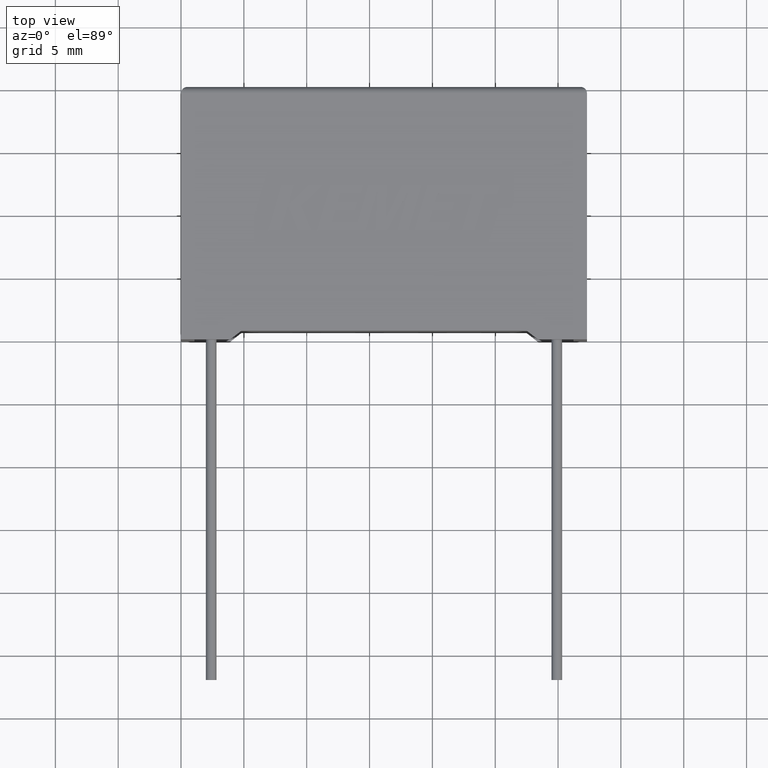
[diagram: clean part render]
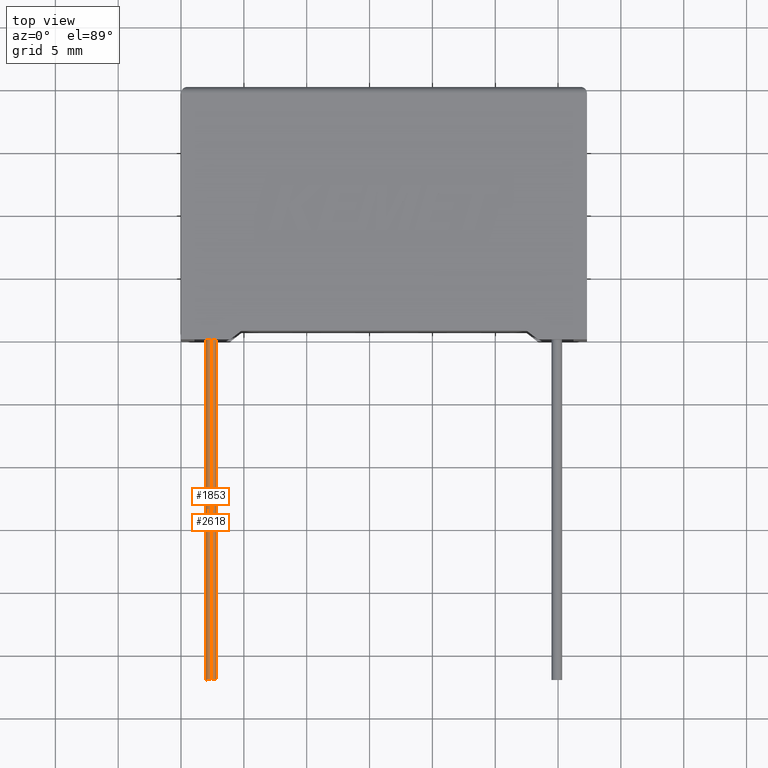
[diagram: same view with one multi-face feature highlighted, each face labeled with its STEP entity id]
A machine part, top view. The highlighted faces form ONE feature: a constant-radius fillet chain: 2 tangent blend faces with common blend radius 0.425 mm. The faces share edges in the B-rep.
Their STEP definitions:
[1] entity #2618 (Cylinder):
#15 = ORIENTED_EDGE ( 'NONE', *, *, #2192, .T. ) ;
#94 = EDGE_CURVE ( 'NONE', #165, #1984, #2976, .T. ) ;
#123 = CARTESIAN_POINT ( 'NONE',  ( 2.399999999999997700, 0.7500000000000000000, 5.175000000000000700 ) ) ;
#165 = VERTEX_POINT ( 'NONE', #2574 ) ;
#184 = DIRECTION ( 'NONE',  ( 0.0000000000000000000, 0.0000000000000000000, 1.000000000000000000 ) ) ;
#201 = AXIS2_PLACEMENT_3D ( 'NONE', #559, #695, #1419 ) ;
#230 = CARTESIAN_POINT ( 'NONE',  ( 2.399999999999997700, -27.00000000000000000, 5.600000000000000500 ) ) ;
#281 = VECTOR ( 'NONE', #2668, 1000.000000000000000 ) ;
#345 = CARTESIAN_POINT ( 'NONE',  ( 2.399999999999997700, 0.7500000000000000000, 6.025000000000001200 ) ) ;
#559 = CARTESIAN_POINT ( 'NONE',  ( 2.399999999999997700, -27.00000000000000000, 5.600000000000000500 ) ) ;
#636 = EDGE_CURVE ( 'NONE', #1984, #1118, #718, .T. ) ;
#695 = DIRECTION ( 'NONE',  ( 0.0000000000000000000, -1.000000000000000000, 0.0000000000000000000 ) ) ;
#718 = LINE ( 'NONE', #2896, #281 ) ;
#781 = CIRCLE ( 'NONE', #1593, 0.4250000000000000400 ) ;
#804 = VECTOR ( 'NONE', #1034, 1000.000000000000000 ) ;
#824 = EDGE_CURVE ( 'NONE', #2234, #1118, #781, .T. ) ;
#831 = CARTESIAN_POINT ( 'NONE',  ( 2.399999999999997700, 0.7500000000000000000, 5.600000000000000500 ) ) ;
#954 = EDGE_LOOP ( 'NONE', ( #1557, #1104, #15, #2871 ) ) ;
#1034 = DIRECTION ( 'NONE',  ( -0.0000000000000000000, 1.000000000000000000, -0.0000000000000000000 ) ) ;
#1104 = ORIENTED_EDGE ( 'NONE', *, *, #94, .F. ) ;
#1118 = VERTEX_POINT ( 'NONE', #123 ) ;
#1142 = AXIS2_PLACEMENT_3D ( 'NONE', #230, #2765, #184 ) ;
#1212 = CARTESIAN_POINT ( 'NONE',  ( 2.399999999999997700, -27.00000000000000000, 5.175000000000000700 ) ) ;
#1264 = CYLINDRICAL_SURFACE ( 'NONE', #1142, 0.4250000000000000400 ) ;
#1419 = DIRECTION ( 'NONE',  ( 0.0000000000000000000, 0.0000000000000000000, -1.000000000000000000 ) ) ;
#1557 = ORIENTED_EDGE ( 'NONE', *, *, #636, .F. ) ;
#1593 = AXIS2_PLACEMENT_3D ( 'NONE', #831, #2451, #2730 ) ;
#1984 = VERTEX_POINT ( 'NONE', #1212 ) ;
#2192 = EDGE_CURVE ( 'NONE', #165, #2234, #2815, .T. ) ;
#2234 = VERTEX_POINT ( 'NONE', #345 ) ;
#2451 = DIRECTION ( 'NONE',  ( 0.0000000000000000000, -1.000000000000000000, 0.0000000000000000000 ) ) ;
#2574 = CARTESIAN_POINT ( 'NONE',  ( 2.399999999999997700, -27.00000000000000000, 6.025000000000001200 ) ) ;
#2618 = ADVANCED_FACE ( 'NONE', ( #2844 ), #1264, .T. ) ;
#2668 = DIRECTION ( 'NONE',  ( -0.0000000000000000000, 1.000000000000000000, -0.0000000000000000000 ) ) ;
#2730 = DIRECTION ( 'NONE',  ( 0.0000000000000000000, 0.0000000000000000000, -1.000000000000000000 ) ) ;
#2765 = DIRECTION ( 'NONE',  ( -0.0000000000000000000, 1.000000000000000000, -0.0000000000000000000 ) ) ;
#2815 = LINE ( 'NONE', #2951, #804 ) ;
#2844 = FACE_OUTER_BOUND ( 'NONE', #954, .T. ) ;
#2871 = ORIENTED_EDGE ( 'NONE', *, *, #824, .T. ) ;
#2896 = CARTESIAN_POINT ( 'NONE',  ( 2.399999999999997700, -27.00000000000000000, 5.175000000000000700 ) ) ;
#2951 = CARTESIAN_POINT ( 'NONE',  ( 2.399999999999997700, -27.00000000000000000, 6.025000000000001200 ) ) ;
#2976 = CIRCLE ( 'NONE', #201, 0.4250000000000000400 ) ;
[2] entity #1853 (Cylinder):
#123 = CARTESIAN_POINT ( 'NONE',  ( 2.399999999999997700, 0.7500000000000000000, 5.175000000000000700 ) ) ;
#144 = EDGE_CURVE ( 'NONE', #1118, #2234, #226, .T. ) ;
#165 = VERTEX_POINT ( 'NONE', #2574 ) ;
#226 = CIRCLE ( 'NONE', #1690, 0.4250000000000000400 ) ;
#281 = VECTOR ( 'NONE', #2668, 1000.000000000000000 ) ;
#345 = CARTESIAN_POINT ( 'NONE',  ( 2.399999999999997700, 0.7500000000000000000, 6.025000000000001200 ) ) ;
#443 = EDGE_LOOP ( 'NONE', ( #1810, #2196, #3035, #1200 ) ) ;
#492 = AXIS2_PLACEMENT_3D ( 'NONE', #1425, #1877, #2625 ) ;
#636 = EDGE_CURVE ( 'NONE', #1984, #1118, #718, .T. ) ;
#703 = DIRECTION ( 'NONE',  ( 0.0000000000000000000, 0.0000000000000000000, -1.000000000000000000 ) ) ;
#718 = LINE ( 'NONE', #2896, #281 ) ;
#757 = FACE_OUTER_BOUND ( 'NONE', #443, .T. ) ;
#804 = VECTOR ( 'NONE', #1034, 1000.000000000000000 ) ;
#1034 = DIRECTION ( 'NONE',  ( -0.0000000000000000000, 1.000000000000000000, -0.0000000000000000000 ) ) ;
#1115 = DIRECTION ( 'NONE',  ( 0.0000000000000000000, -1.000000000000000000, 0.0000000000000000000 ) ) ;
#1118 = VERTEX_POINT ( 'NONE', #123 ) ;
#1200 = ORIENTED_EDGE ( 'NONE', *, *, #2192, .F. ) ;
#1212 = CARTESIAN_POINT ( 'NONE',  ( 2.399999999999997700, -27.00000000000000000, 5.175000000000000700 ) ) ;
#1225 = CIRCLE ( 'NONE', #2075, 0.4250000000000000400 ) ;
#1425 = CARTESIAN_POINT ( 'NONE',  ( 2.399999999999997700, -27.00000000000000000, 5.600000000000000500 ) ) ;
#1503 = EDGE_CURVE ( 'NONE', #1984, #165, #1225, .T. ) ;
#1504 = CYLINDRICAL_SURFACE ( 'NONE', #492, 0.4250000000000000400 ) ;
#1506 = DIRECTION ( 'NONE',  ( 0.0000000000000000000, -1.000000000000000000, 0.0000000000000000000 ) ) ;
#1690 = AXIS2_PLACEMENT_3D ( 'NONE', #2309, #1115, #703 ) ;
#1810 = ORIENTED_EDGE ( 'NONE', *, *, #1503, .F. ) ;
#1853 = ADVANCED_FACE ( 'NONE', ( #757 ), #1504, .T. ) ;
#1877 = DIRECTION ( 'NONE',  ( -0.0000000000000000000, 1.000000000000000000, -0.0000000000000000000 ) ) ;
#1984 = VERTEX_POINT ( 'NONE', #1212 ) ;
#2075 = AXIS2_PLACEMENT_3D ( 'NONE', #2742, #1506, #2219 ) ;
#2192 = EDGE_CURVE ( 'NONE', #165, #2234, #2815, .T. ) ;
#2196 = ORIENTED_EDGE ( 'NONE', *, *, #636, .T. ) ;
#2219 = DIRECTION ( 'NONE',  ( 0.0000000000000000000, 0.0000000000000000000, -1.000000000000000000 ) ) ;
#2234 = VERTEX_POINT ( 'NONE', #345 ) ;
#2309 = CARTESIAN_POINT ( 'NONE',  ( 2.399999999999997700, 0.7500000000000000000, 5.600000000000000500 ) ) ;
#2574 = CARTESIAN_POINT ( 'NONE',  ( 2.399999999999997700, -27.00000000000000000, 6.025000000000001200 ) ) ;
#2625 = DIRECTION ( 'NONE',  ( 0.0000000000000000000, 0.0000000000000000000, 1.000000000000000000 ) ) ;
#2668 = DIRECTION ( 'NONE',  ( -0.0000000000000000000, 1.000000000000000000, -0.0000000000000000000 ) ) ;
#2742 = CARTESIAN_POINT ( 'NONE',  ( 2.399999999999997700, -27.00000000000000000, 5.600000000000000500 ) ) ;
#2815 = LINE ( 'NONE', #2951, #804 ) ;
#2896 = CARTESIAN_POINT ( 'NONE',  ( 2.399999999999997700, -27.00000000000000000, 5.175000000000000700 ) ) ;
#2951 = CARTESIAN_POINT ( 'NONE',  ( 2.399999999999997700, -27.00000000000000000, 6.025000000000001200 ) ) ;
#3035 = ORIENTED_EDGE ( 'NONE', *, *, #144, .T. ) ;